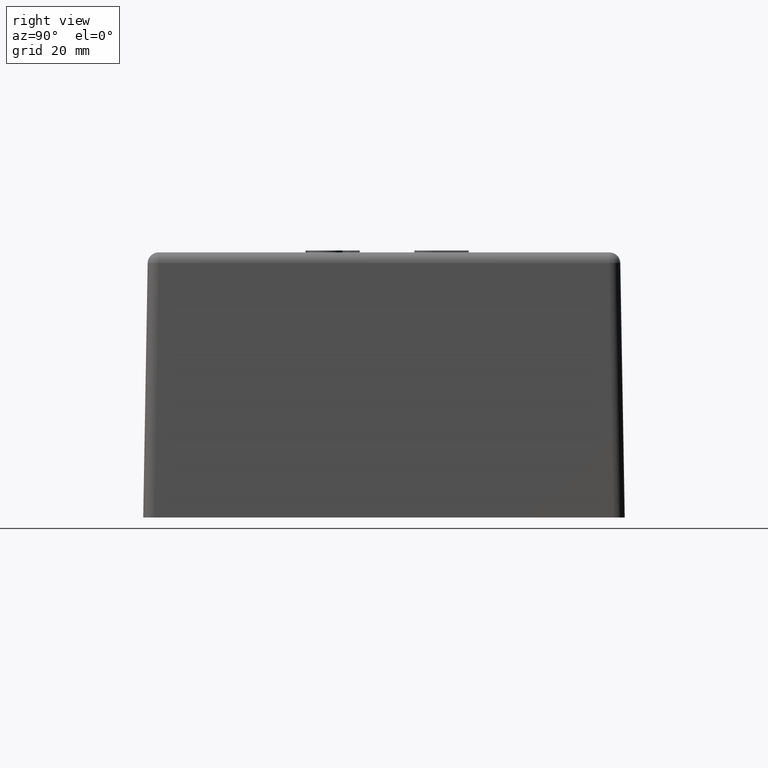
[diagram: clean part render]
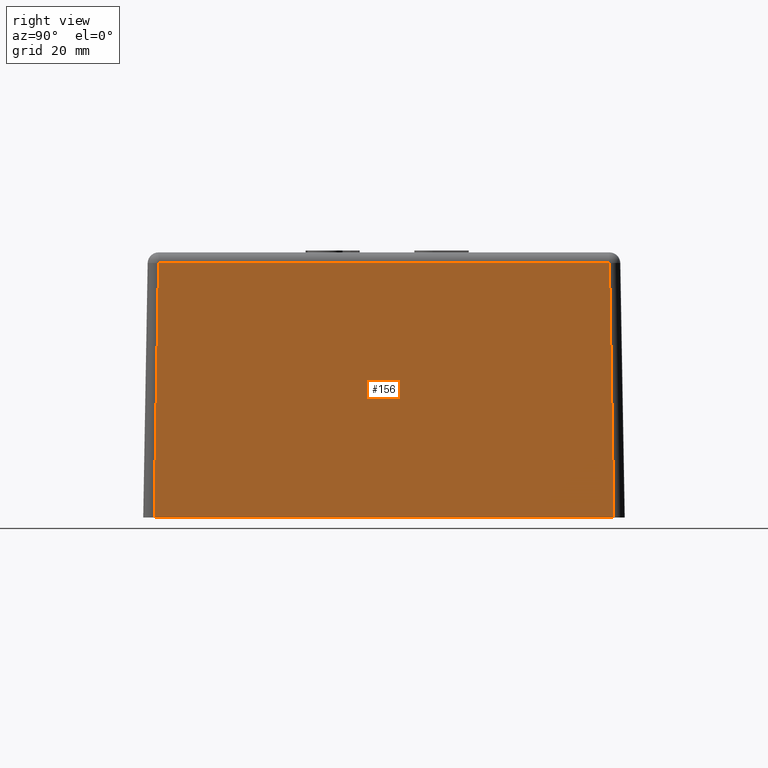
[diagram: same view with one face highlighted and labeled with its STEP entity id]
A machine part, right view. The second image highlights one B-rep face of the part: STEP entity #156.
In plain terms, the highlighted planar face has unit normal (0.9998, 0, 0.0175).
Its self-contained STEP definition (entity closure, byte-faithful):
#156 = ADVANCED_FACE( '', ( #341 ), #342, .T. );
#341 = FACE_OUTER_BOUND( '', #540, .T. );
#342 = PLANE( '', #541 );
#540 = EDGE_LOOP( '', ( #1233, #1234, #1235, #1236 ) );
#541 = AXIS2_PLACEMENT_3D( '', #1237, #1238, #1239 );
#1233 = ORIENTED_EDGE( '', *, *, #1531, .T. );
#1234 = ORIENTED_EDGE( '', *, *, #1516, .T. );
#1235 = ORIENTED_EDGE( '', *, *, #1527, .T. );
#1236 = ORIENTED_EDGE( '', *, *, #1548, .T. );
#1237 = CARTESIAN_POINT( '', ( 66.3000000000000, -66.3000000000000, 0.000000000000000 ) );
#1238 = DIRECTION( '', ( 0.999847695156391, 0.000000000000000, 0.0174524064372835 ) );
#1239 = DIRECTION( '', ( 0.0174524064372835, 0.000000000000000, -0.999847695156391 ) );
#1516 = EDGE_CURVE( '', #1855, #1863, #1865, .F. );
#1527 = EDGE_CURVE( '', #1863, #1879, #1880, .F. );
#1531 = EDGE_CURVE( '', #1886, #1855, #1887, .T. );
#1548 = EDGE_CURVE( '', #1879, #1886, #1913, .F. );
#1855 = VERTEX_POINT( '', #2523 );
#1863 = VERTEX_POINT( '', #2532 );
#1865 = LINE( '', #2534, #2535 );
#1879 = VERTEX_POINT( '', #2551 );
#1880 = LINE( '', #2552, #2553 );
#1886 = VERTEX_POINT( '', #2561 );
#1887 = LINE( '', #2562, #2563 );
#1913 = LINE( '', #2603, #2604 );
#2523 = CARTESIAN_POINT( '', ( 65.0772315563622, 62.0776884708930, 70.0523572193119 ) );
#2532 = CARTESIAN_POINT( '', ( 65.0772315563622, -62.0776884708930, 70.0523572193118 ) );
#2534 = CARTESIAN_POINT( '', ( 65.0772315563622, -62.0262371747709, 70.0523572193118 ) );
#2535 = VECTOR( '', #2797, 1000.00000000000 );
#2551 = CARTESIAN_POINT( '', ( 66.3000000000000, -63.3004569145308, 0.000000000000000 ) );
#2552 = CARTESIAN_POINT( '', ( 66.3009133421097, -63.3013702566405, -0.0523253344201979 ) );
#2553 = VECTOR( '', #2824, 1000.00000000000 );
#2561 = CARTESIAN_POINT( '', ( 66.3000000000000, 63.3004569145308, 0.000000000000000 ) );
#2562 = CARTESIAN_POINT( '', ( 66.2605374714205, 63.2609943859513, 2.26080674817263 ) );
#2563 = VECTOR( '', #2830, 1000.00000000000 );
#2603 = CARTESIAN_POINT( '', ( 66.3000000000000, -66.3000000000000, 0.000000000000000 ) );
#2604 = VECTOR( '', #2851, 1000.00000000000 );
#2797 = DIRECTION( '', ( 0.000000000000000, 1.00000000000000, 0.000000000000000 ) );
#2824 = DIRECTION( '', ( -0.0174497491606827, 0.0174497491606827, 0.999695459881887 ) );
#2830 = DIRECTION( '', ( -0.0174497491606827, -0.0174497491606827, 0.999695459881887 ) );
#2851 = DIRECTION( '', ( 0.000000000000000, -1.00000000000000, 0.000000000000000 ) );